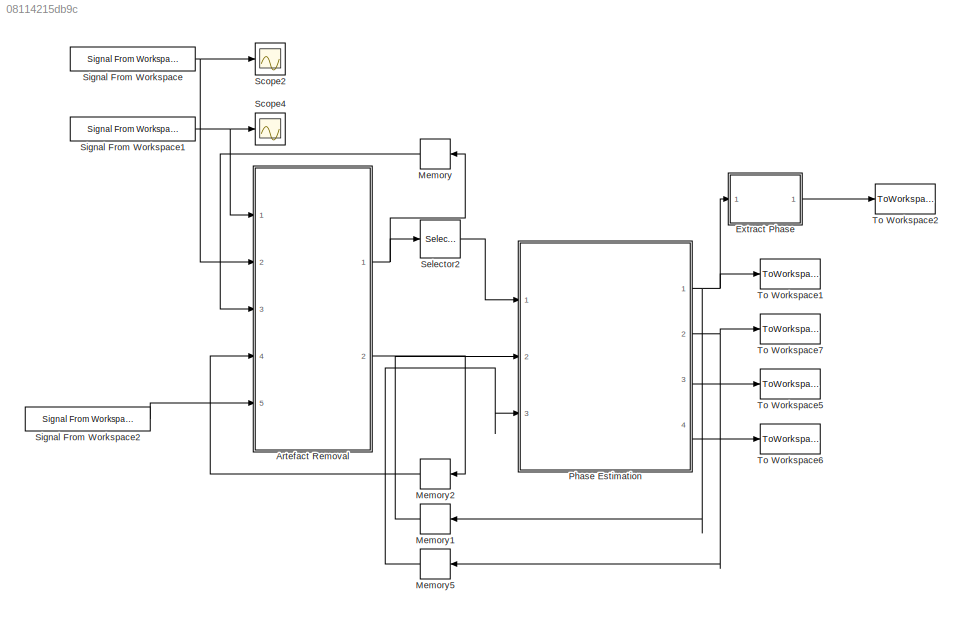
MODEL slx_08114215db9c
KIND model
CONFIG AbsTol = auto
CONFIG EnableMultiTasking = off
CONFIG FixedStep = model.Ts
CONFIG MaxStep = auto
CONFIG MinStep = auto
CONFIG RelTol = 1e-6
CONFIG SampleTimeConstraint = Unconstrained
CONFIG Solver = VariableStepAuto
CONFIG SolverName = VariableStepAuto
CONFIG StartTime = 0.0
CONFIG StopTime = combined_model.sim_dur
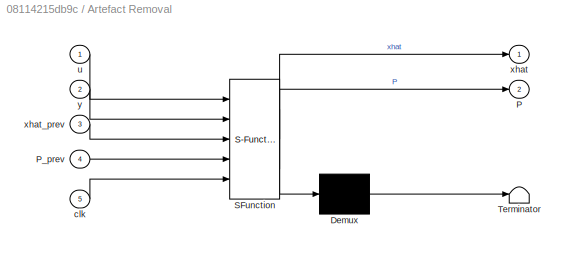
BLOCK [SubSystem] Artefact Removal
  ErrorFcn = Stateflow.Translate.translate
  PermitHierarchicalResolution = ExplicitOnly
  Ports = [5, 2]
  RequestExecContextInheritance = off
  SFBlockType = MATLAB Function
  TreatAsAtomicUnit = on
BLOCK [Demux] Artefact Removal/ Demux 
  Outputs = 1
  Ports = [1, 1]
BLOCK [S-Function] Artefact Removal/ SFunction 
  EnableBusSupport = on
  FunctionName = sf_sfun
  Parameters = model1
  PortCounts = [5 3]
  Ports = [5, 3]
  SFcnIsStateOwnerBlock = off
  SFunctionDeploymentMode = off
  Tag = Stateflow S-Function 3
BLOCK [Terminator] Artefact Removal/ Terminator 
BLOCK [Outport] Artefact Removal/P
  IconDisplay = Port number
  Port = 2
BLOCK [Inport] Artefact Removal/P_prev
  IconDisplay = Port number
  Port = 4
BLOCK [Inport] Artefact Removal/clk
  IconDisplay = Port number
  Port = 5
BLOCK [Inport] Artefact Removal/u
  IconDisplay = Port number
BLOCK [Outport] Artefact Removal/xhat
  IconDisplay = Port number
BLOCK [Inport] Artefact Removal/xhat_prev
  IconDisplay = Port number
  Port = 3
BLOCK [Inport] Artefact Removal/y
  IconDisplay = Port number
  Port = 2
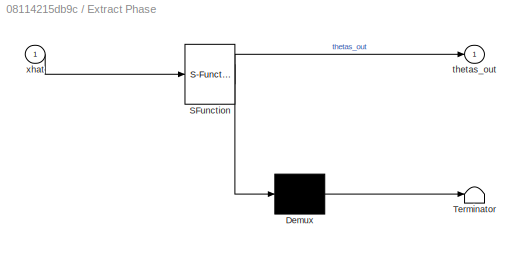
BLOCK [SubSystem] Extract Phase
  ErrorFcn = Stateflow.Translate.translate
  PermitHierarchicalResolution = ExplicitOnly
  Ports = [1, 1]
  RequestExecContextInheritance = off
  SFBlockType = MATLAB Function
  TreatAsAtomicUnit = on
BLOCK [Demux] Extract Phase/ Demux 
  Outputs = 1
  Ports = [1, 1]
BLOCK [S-Function] Extract Phase/ SFunction 
  EnableBusSupport = on
  FunctionName = sf_sfun
  PortCounts = [1 2]
  Ports = [1, 2]
  SFcnIsStateOwnerBlock = off
  SFunctionDeploymentMode = off
  Tag = Stateflow S-Function 2
BLOCK [Terminator] Extract Phase/ Terminator 
BLOCK [Outport] Extract Phase/thetas_out
  IconDisplay = Port number
BLOCK [Inport] Extract Phase/xhat
  IconDisplay = Port number
BLOCK [Memory] Memory
  InheritSampleTime = on
  InitialCondition = model1.x_0
BLOCK [Memory] Memory1
  InheritSampleTime = on
  InitialCondition = model2.x_0
BLOCK [Memory] Memory2
  InheritSampleTime = on
  InitialCondition = model1.P0
BLOCK [Memory] Memory5
  InheritSampleTime = on
  InitialCondition = model2.P0
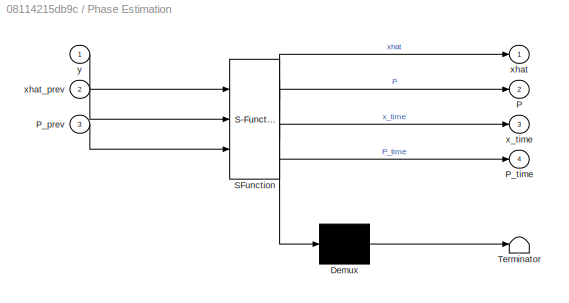
BLOCK [SubSystem] Phase Estimation
  ErrorFcn = Stateflow.Translate.translate
  PermitHierarchicalResolution = ExplicitOnly
  Ports = [3, 4]
  RequestExecContextInheritance = off
  SFBlockType = MATLAB Function
  TreatAsAtomicUnit = on
BLOCK [Demux] Phase Estimation/ Demux 
  Outputs = 1
  Ports = [1, 1]
BLOCK [S-Function] Phase Estimation/ SFunction 
  EnableBusSupport = on
  FunctionName = sf_sfun
  Parameters = model2
  PortCounts = [3 5]
  Ports = [3, 5]
  SFcnIsStateOwnerBlock = off
  SFunctionDeploymentMode = off
  Tag = Stateflow S-Function 1
BLOCK [Terminator] Phase Estimation/ Terminator 
BLOCK [Outport] Phase Estimation/P
  IconDisplay = Port number
  Port = 2
BLOCK [Inport] Phase Estimation/P_prev
  IconDisplay = Port number
  Port = 3
BLOCK [Outport] Phase Estimation/P_time
  IconDisplay = Port number
  Port = 4
BLOCK [Outport] Phase Estimation/x_time
  IconDisplay = Port number
  Port = 3
BLOCK [Outport] Phase Estimation/xhat
  IconDisplay = Port number
BLOCK [Inport] Phase Estimation/xhat_prev
  IconDisplay = Port number
  Port = 2
BLOCK [Inport] Phase Estimation/y
  IconDisplay = Port number
BLOCK [Scope] Scope2
  Floating = off
  NumInputPorts = 1
  Ports = [1]
  ScopeSpecificationString = Simulink.scopes.TimeScopeBlockCfg('CurrentConfiguration', extmgr.ConfigurationSet(extmgr.Configuration('Core','General UI',true),extmgr.Configuration('Core','Source UI',true),extmgr.Configuration('Sources','WiredSimulink',true,'DataLoggingVariableName','ScopeData1'),extmgr.Configuration('Visuals','Time Domain',true,'SerializedDisplays',{struct('MinYLimReal','-0.48787','MaxYLimReal','0.48787','YLab...<+1451ch>
BLOCK [Scope] Scope4
  Floating = off
  NumInputPorts = 1
  Ports = [1]
  ScopeSpecificationString = Simulink.scopes.TimeScopeBlockCfg('CurrentConfiguration', extmgr.ConfigurationSet(extmgr.Configuration('Core','General UI',true),extmgr.Configuration('Core','Source UI',true),extmgr.Configuration('Sources','WiredSimulink',true),extmgr.Configuration('Visuals','Time Domain',true,'SerializedDisplays',{struct('MinYLimReal','-1.00000','MaxYLimReal','1.00000','YLabelReal','','MinYLimMag','0.00000','MaxY...<+1371ch>
BLOCK [Selector] Selector2
  IndexOptions = Index vector (dialog)
  Indices = [1]
  InputPortWidth = 6
  OutputSizes = 1
  Ports = [1, 1]
BLOCK [Reference] Signal From Workspace  REF=dspsrcs4/Signal From
Workspace
  Ports = [0, 1]
  SourceBlock = dspsrcs4/Signal From\nWorkspace
  SourceProductBaseCode = DS
  SourceProductName = DSP System Toolbox
  SourceType = Signal From Workspace
BLOCK [Reference] Signal From Workspace1  REF=dspsrcs4/Signal From
Workspace
  Ports = [0, 1]
  SourceBlock = dspsrcs4/Signal From\nWorkspace
  SourceProductBaseCode = DS
  SourceProductName = DSP System Toolbox
  SourceType = Signal From Workspace
BLOCK [Reference] Signal From Workspace2  REF=dspsrcs4/Signal From
Workspace
  Ports = [0, 1]
  SourceBlock = dspsrcs4/Signal From\nWorkspace
  SourceProductBaseCode = DS
  SourceProductName = DSP System Toolbox
  SourceType = Signal From Workspace
BLOCK [ToWorkspace] To Workspace1
  MaxDataPoints = inf
  Ports = [1]
  SampleTime = combined_model.Ts
  Save2DSignal = 2-D array (concatenate along first dimension)
  VariableName = xtt
BLOCK [ToWorkspace] To Workspace2
  MaxDataPoints = inf
  Ports = [1]
  SampleTime = combined_model.Ts
  Save2DSignal = 2-D array (concatenate along first dimension)
  VariableName = thetas
BLOCK [ToWorkspace] To Workspace5
  MaxDataPoints = inf
  Ports = [1]
  SampleTime = combined_model.Ts
  Save2DSignal = 2-D array (concatenate along first dimension)
  VariableName = xtt_1
BLOCK [ToWorkspace] To Workspace6
  MaxDataPoints = inf
  Ports = [1]
  SampleTime = combined_model.Ts
  Save2DSignal = 2-D array (concatenate along first dimension)
  VariableName = Ptt_1
BLOCK [ToWorkspace] To Workspace7
  MaxDataPoints = inf
  Ports = [1]
  SampleTime = combined_model.Ts
  Save2DSignal = 2-D array (concatenate along first dimension)
  VariableName = Ptt
NET Artefact Removal:1 -> Memory:1, Selector2:1
LINE Artefact Removal:2 -> Memory2:1
LINE Extract Phase:1 -> To Workspace2:1
LINE Memory1:1 -> Phase Estimation:2
LINE Memory2:1 -> Artefact Removal:4
LINE Memory5:1 -> Phase Estimation:3
LINE Memory:1 -> Artefact Removal:3
NET Phase Estimation:1 -> Extract Phase:1, Memory1:1, To Workspace1:1
NET Phase Estimation:2 -> Memory5:1, To Workspace7:1
LINE Phase Estimation:3 -> To Workspace5:1
LINE Phase Estimation:4 -> To Workspace6:1
LINE Selector2:1 -> Phase Estimation:1
NET Signal From Workspace1:1 -> Artefact Removal:1, Scope4:1
LINE Signal From Workspace2:1 -> Artefact Removal:5
NET Signal From Workspace:1 -> Artefact Removal:2, Scope2:1
note: NET lines group one-source signal fan-out (src -> all destinations, sorted); 1:1 wires keep LINE
CHART Phase Estimation states=1 transitions=1
  STATE_LABEL 'eML_blk_kernel()'
  STATE_LABEL "SCRIPT:\nfunction [xhat, P, x_time, P_time] = phase_kalman(y, xhat_prev, P_prev, model2)\nx_time = model2.A*xhat_prev;\nP_time = model2.A*P_prev*model2.A'+ model2.Q;\n\nK = P_time*(model2.C')*pinv(model2.C*P_time*model2.C' + model2.R);\nepsilon = y - model2.C*x_time;\n\nxhat = x_time + K*epsilon;\nP = P_time - K*model2.C*P_time;\nend"
CHART Extract Phase states=1 transitions=1
  STATE_LABEL 'eML_blk_kernel()'
  STATE_LABEL 'SCRIPT:\nfunction thetas_out  = extract_phase(xhat)\n\nthetas_out = atan2(xhat(2), xhat(1))'
CHART Artefact Removal states=1 transitions=1
  STATE_LABEL 'eML_blk_kernel()'
  STATE_LABEL "SCRIPT:\nfunction [xhat, P] = artefact_kalman(u, y, xhat_prev, P_prev, clk, model1)\nQ = model1.Q(((clk-1)*4+1):(clk*4), 1:4)\nR = model1.R(clk);\n\nx_time = model1.A*xhat_prev + model1.B*u;\nP_time = model1.A*P_prev*model1.A'+ model1.G*Q*model1.G';\n\nK = P_time*(model1.C')*pinv(model1.C*P_time*model1.C' + R);\nepsilon = y - model1.C*x_time;\n\nxhat = x_time + K*epsilon;\nP = P_time - K*model1.C*P_time;"
